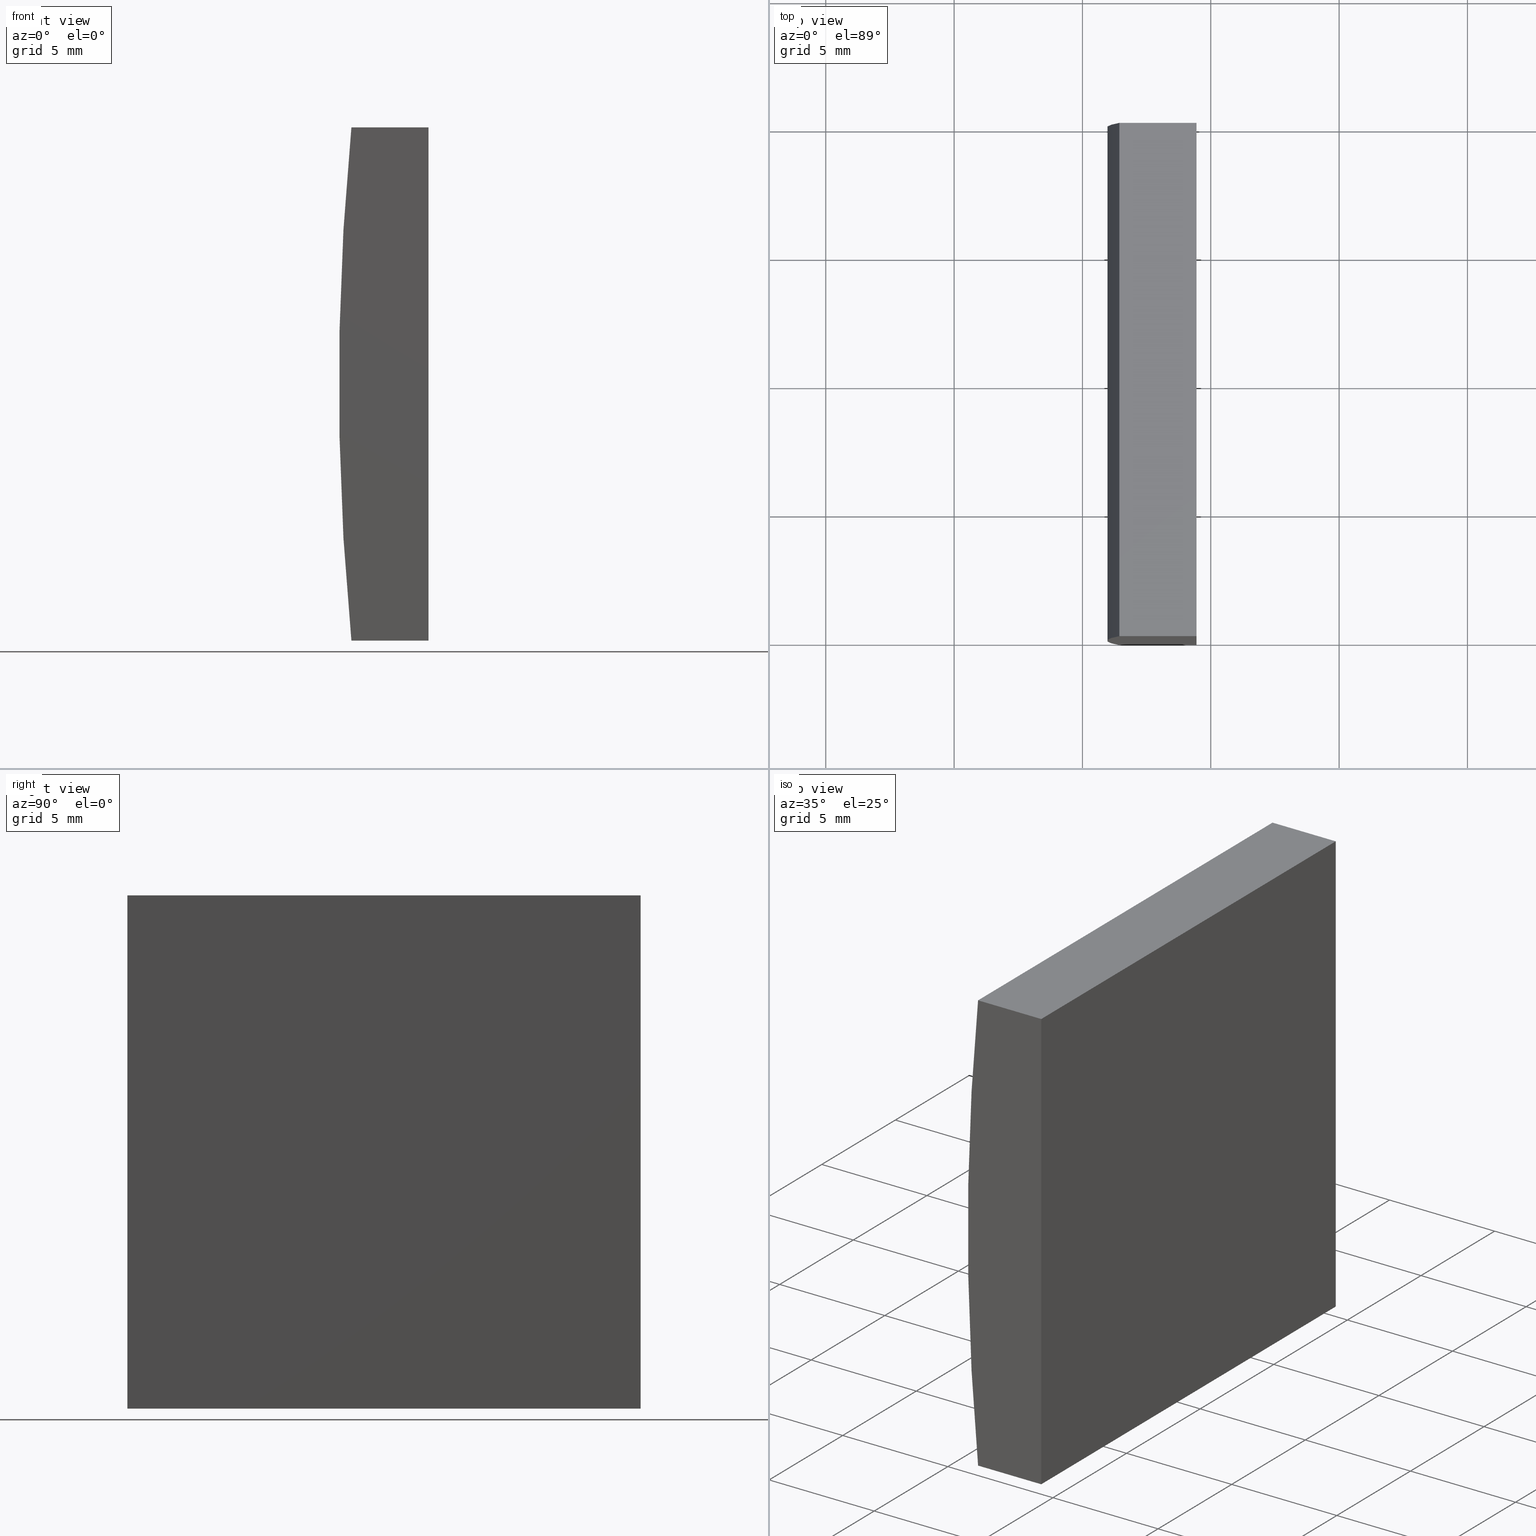
[diagram: canonical four-view strip — front | top / right | iso, engineering-drawing reading convention]
A machine part, canonical four-view strip (front | top / right | iso — engineering-drawing reading convention). The complete STEP part file that produces these views, byte-faithful:
ISO-10303-21;
HEADER;
FILE_DESCRIPTION (( 'STEP AP214' ),
    '1' );
FILE_NAME ('155033.STEP',
    '2019-06-17T06:59:19',
    ( 'user' ),
    ( '΢���й�' ),
    'SwSTEP 2.0',
    'SolidWorks 2016',
    '' );
FILE_SCHEMA (( 'AUTOMOTIVE_DESIGN' ));
ENDSEC;

DATA;
#1 = VECTOR ( 'NONE', #173, 1000.000000000000000 ) ;
#2 = STYLED_ITEM ( 'NONE', ( #88 ), #162 ) ;
#3 = ORIENTED_EDGE ( 'NONE', *, *, #18, .T. ) ;
#4 = FACE_OUTER_BOUND ( 'NONE', #10, .T. ) ;
#5 = CARTESIAN_POINT ( 'NONE',  ( -95.55479566514874500, 0.0000000000000000000, -9.999999999999985800 ) ) ;
#6 = PLANE ( 'NONE',  #77 ) ;
#7 = CARTESIAN_POINT ( 'NONE',  ( -98.56010064939295000, 20.00000000000000000, -10.00000000000000000 ) ) ;
#8 = EDGE_LOOP ( 'NONE', ( #53, #178, #52, #167 ) ) ;
#9 = AXIS2_PLACEMENT_3D ( 'NONE', #132, #143, #194 ) ;
#10 = EDGE_LOOP ( 'NONE', ( #91, #63, #113, #126 ) ) ;
#11 = SURFACE_STYLE_FILL_AREA ( #19 ) ;
#12 = CARTESIAN_POINT ( 'NONE',  ( -98.56010064939296500, 0.0000000000000000000, 10.00000000000000000 ) ) ;
#13 =( LENGTH_UNIT ( ) NAMED_UNIT ( * ) SI_UNIT ( .MILLI., .METRE. ) );
#14 = LINE ( 'NONE', #17, #30 ) ;
#15 = COLOUR_RGB ( '',1.000000000000000000, 1.000000000000000000, 1.000000000000000000 ) ;
#16 = VERTEX_POINT ( 'NONE', #185 ) ;
#17 = CARTESIAN_POINT ( 'NONE',  ( -98.56010064939295000, 0.0000000000000000000, -10.00000000000000000 ) ) ;
#18 = EDGE_CURVE ( 'NONE', #176, #123, #22, .T. ) ;
#19 = FILL_AREA_STYLE ('',( #148 ) ) ;
#20 = DIRECTION ( 'NONE',  ( 1.000000000000000000, 0.0000000000000000000, 4.617763548315712200E-015 ) ) ;
#21 = CARTESIAN_POINT ( 'NONE',  ( 4.355204334851265500, 20.00000000000000000, 4.286263797015675000E-017 ) ) ;
#22 = LINE ( 'NONE', #12, #138 ) ;
#23 = CARTESIAN_POINT ( 'NONE',  ( -98.56010064939296500, 20.00000000000000000, 10.00000000000000000 ) ) ;
#24 =( GEOMETRIC_REPRESENTATION_CONTEXT ( 3 ) GLOBAL_UNCERTAINTY_ASSIGNED_CONTEXT ( ( #26 ) ) GLOBAL_UNIT_ASSIGNED_CONTEXT ( ( #13, #198, #43 ) ) REPRESENTATION_CONTEXT ( 'NONE', 'WORKASPACE' ) );
#25 = DIRECTION ( 'NONE',  ( 0.0000000000000000000, -0.0000000000000000000, 1.000000000000000000 ) ) ;
#26 = UNCERTAINTY_MEASURE_WITH_UNIT (LENGTH_MEASURE( 1.000000000000000100E-005 ), #13, 'distance_accuracy_value', 'NONE');
#27 = FILL_AREA_STYLE ('',( #94 ) ) ;
#28 = DIRECTION ( 'NONE',  ( 0.0000000000000000000, 1.000000000000000000, 0.0000000000000000000 ) ) ;
#29 = DIRECTION ( 'NONE',  ( 0.0000000000000000000, -0.0000000000000000000, 1.000000000000000000 ) ) ;
#30 = VECTOR ( 'NONE', #133, 1000.000000000000000 ) ;
#31 = STYLED_ITEM ( 'NONE', ( #157 ), #38 ) ;
#32 = AXIS2_PLACEMENT_3D ( 'NONE', #21, #105, #29 ) ;
#33 = AXIS2_PLACEMENT_3D ( 'NONE', #37, #172, #25 ) ;
#34 = ORIENTED_EDGE ( 'NONE', *, *, #101, .F. ) ;
#35 = DIRECTION ( 'NONE',  ( -1.000000000000000000, 0.0000000000000000000, 0.0000000000000000000 ) ) ;
#36 = CARTESIAN_POINT ( 'NONE',  ( -95.55479566514874500, 20.00000000000000000, -9.999999999999985800 ) ) ;
#37 = CARTESIAN_POINT ( 'NONE',  ( 4.355204334851265500, 0.0000000000000000000, 4.286263797015675000E-017 ) ) ;
#38 = MANIFOLD_SOLID_BREP ( '͹̨-����1', #48 ) ;
#39 = MECHANICAL_DESIGN_GEOMETRIC_PRESENTATION_REPRESENTATION (  '', ( #2 ), #76 ) ;
#40 = CARTESIAN_POINT ( 'NONE',  ( -98.56010064939295000, 20.00000000000000000, -10.00000000000000000 ) ) ;
#41 = CARTESIAN_POINT ( 'NONE',  ( -98.56010064939296500, 0.0000000000000000000, 10.00000000000000000 ) ) ;
#42 = CARTESIAN_POINT ( 'NONE',  ( -98.56010064939295000, 20.00000000000000000, -10.00000000000000000 ) ) ;
#43 =( NAMED_UNIT ( * ) SI_UNIT ( $, .STERADIAN. ) SOLID_ANGLE_UNIT ( ) );
#44 = ADVANCED_FACE ( 'NONE', ( #139 ), #80, .T. ) ;
#45 = EDGE_CURVE ( 'NONE', #16, #123, #100, .T. ) ;
#46 = EDGE_CURVE ( 'NONE', #16, #109, #112, .T. ) ;
#47 = EDGE_CURVE ( 'NONE', #99, #176, #82, .T. ) ;
#48 = CLOSED_SHELL ( 'NONE', ( #44, #201, #83, #92, #156, #55 ) ) ;
#49 = LINE ( 'NONE', #180, #1 ) ;
#50 = PLANE ( 'NONE',  #33 ) ;
#51 = SURFACE_SIDE_STYLE ('',( #11 ) ) ;
#52 = ORIENTED_EDGE ( 'NONE', *, *, #164, .F. ) ;
#53 = ORIENTED_EDGE ( 'NONE', *, *, #47, .F. ) ;
#54 =( NAMED_UNIT ( * ) SI_UNIT ( $, .STERADIAN. ) SOLID_ANGLE_UNIT ( ) );
#55 = ADVANCED_FACE ( 'NONE', ( #71 ), #50, .F. ) ;
#56 = PRODUCT_DEFINITION ( 'δ֪', '', #75, #189 ) ;
#57 = EDGE_LOOP ( 'NONE', ( #111, #108, #104, #153 ) ) ;
#58 = AXIS2_PLACEMENT_3D ( 'NONE', #87, #28, #166 ) ;
#59 = SHAPE_DEFINITION_REPRESENTATION ( #165, #162 ) ;
#60 = CARTESIAN_POINT ( 'NONE',  ( -95.55479566514874500, 20.00000000000000000, -9.999999999999985800 ) ) ;
#61 = APPLICATION_CONTEXT ( 'automotive_design' ) ;
#62 = FACE_OUTER_BOUND ( 'NONE', #125, .T. ) ;
#63 = ORIENTED_EDGE ( 'NONE', *, *, #199, .F. ) ;
#64 = DIRECTION ( 'NONE',  ( -4.617763548315712200E-015, 0.0000000000000000000, 1.000000000000000000 ) ) ;
#65 = EDGE_CURVE ( 'NONE', #127, #99, #14, .T. ) ;
#66 =( NAMED_UNIT ( * ) PLANE_ANGLE_UNIT ( ) SI_UNIT ( $, .RADIAN. ) );
#67 = LINE ( 'NONE', #169, #97 ) ;
#68 = PRODUCT ( '155033', '155033', '', ( #137 ) ) ;
#69 =( LENGTH_UNIT ( ) NAMED_UNIT ( * ) SI_UNIT ( .MILLI., .METRE. ) );
#70 = VECTOR ( 'NONE', #155, 1000.000000000000000 ) ;
#71 = FACE_OUTER_BOUND ( 'NONE', #8, .T. ) ;
#72 = PRODUCT_RELATED_PRODUCT_CATEGORY ( 'part', '', ( #68 ) ) ;
#73 = ORIENTED_EDGE ( 'NONE', *, *, #45, .F. ) ;
#74 = DIRECTION ( 'NONE',  ( 1.000000000000000000, 0.0000000000000000000, 0.0000000000000000000 ) ) ;
#75 = PRODUCT_DEFINITION_FORMATION_WITH_SPECIFIED_SOURCE ( '�κ�', '', #68, .NOT_KNOWN. ) ;
#76 =( GEOMETRIC_REPRESENTATION_CONTEXT ( 3 ) GLOBAL_UNCERTAINTY_ASSIGNED_CONTEXT ( ( #118 ) ) GLOBAL_UNIT_ASSIGNED_CONTEXT ( ( #69, #66, #54 ) ) REPRESENTATION_CONTEXT ( 'NONE', 'WORKASPACE' ) );
#77 = AXIS2_PLACEMENT_3D ( 'NONE', #42, #64, #20 ) ;
#78 = EDGE_LOOP ( 'NONE', ( #191, #103, #117, #129 ) ) ;
#79 = UNCERTAINTY_MEASURE_WITH_UNIT (LENGTH_MEASURE( 1.000000000000000100E-005 ), #182, 'distance_accuracy_value', 'NONE');
#80 = CYLINDRICAL_SURFACE ( 'NONE', #151, 103.4000000000000200 ) ;
#81 = CARTESIAN_POINT ( 'NONE',  ( -98.56010064939296500, 20.00000000000000000, 10.00000000000000000 ) ) ;
#82 = CIRCLE ( 'NONE', #58, 103.4000000000000200 ) ;
#83 = ADVANCED_FACE ( 'NONE', ( #4 ), #168, .F. ) ;
#84 = APPLICATION_CONTEXT ( 'automotive_design' ) ;
#85 = CARTESIAN_POINT ( 'NONE',  ( -95.55479566514874500, 20.00000000000000000, -9.999999999999985800 ) ) ;
#86 = LINE ( 'NONE', #5, #146 ) ;
#87 = CARTESIAN_POINT ( 'NONE',  ( 4.355204334851265500, 0.0000000000000000000, 4.286263797015675000E-017 ) ) ;
#88 = PRESENTATION_STYLE_ASSIGNMENT (( #171 ) ) ;
#89 = PRESENTATION_LAYER_ASSIGNMENT (  '', '', ( #2 ) ) ;
#90 = DIRECTION ( 'NONE',  ( 0.0000000000000000000, 0.0000000000000000000, 1.000000000000000000 ) ) ;
#91 = ORIENTED_EDGE ( 'NONE', *, *, #164, .T. ) ;
#92 = ADVANCED_FACE ( 'NONE', ( #98 ), #6, .F. ) ;
#93 = EDGE_LOOP ( 'NONE', ( #145, #34, #179, #120 ) ) ;
#94 = FILL_AREA_STYLE_COLOUR ( '', #107 ) ;
#95 = CARTESIAN_POINT ( 'NONE',  ( -98.56010064939295000, 0.0000000000000000000, -10.00000000000000000 ) ) ;
#96 = SURFACE_STYLE_FILL_AREA ( #27 ) ;
#97 = VECTOR ( 'NONE', #154, 1000.000000000000000 ) ;
#98 = FACE_OUTER_BOUND ( 'NONE', #93, .T. ) ;
#99 = VERTEX_POINT ( 'NONE', #95 ) ;
#100 = LINE ( 'NONE', #158, #70 ) ;
#101 = EDGE_CURVE ( 'NONE', #149, #99, #122, .T. ) ;
#102 = PLANE ( 'NONE',  #32 ) ;
#103 = ORIENTED_EDGE ( 'NONE', *, *, #202, .T. ) ;
#104 = ORIENTED_EDGE ( 'NONE', *, *, #142, .F. ) ;
#105 = DIRECTION ( 'NONE',  ( 0.0000000000000000000, 1.000000000000000000, 0.0000000000000000000 ) ) ;
#106 = CARTESIAN_POINT ( 'NONE',  ( 4.355204334851265500, 20.00000000000000000, 4.286263797015675000E-017 ) ) ;
#107 = COLOUR_RGB ( '',1.000000000000000000, 1.000000000000000000, 1.000000000000000000 ) ;
#108 = ORIENTED_EDGE ( 'NONE', *, *, #175, .F. ) ;
#109 = VERTEX_POINT ( 'NONE', #85 ) ;
#110 = MECHANICAL_DESIGN_GEOMETRIC_PRESENTATION_REPRESENTATION (  '', ( #31 ), #24 ) ;
#111 = ORIENTED_EDGE ( 'NONE', *, *, #47, .T. ) ;
#112 = LINE ( 'NONE', #60, #196 ) ;
#113 = ORIENTED_EDGE ( 'NONE', *, *, #46, .F. ) ;
#114 = PRESENTATION_LAYER_ASSIGNMENT (  '', '', ( #31 ) ) ;
#115 = PLANE ( 'NONE',  #128 ) ;
#116 = CARTESIAN_POINT ( 'NONE',  ( -95.55479566514874500, 0.0000000000000000000, 10.00000000000000000 ) ) ;
#117 = ORIENTED_EDGE ( 'NONE', *, *, #46, .T. ) ;
#118 = UNCERTAINTY_MEASURE_WITH_UNIT (LENGTH_MEASURE( 1.000000000000000100E-005 ), #69, 'distance_accuracy_value', 'NONE');
#119 = CARTESIAN_POINT ( 'NONE',  ( -98.56010064939296500, 20.00000000000000000, 10.00000000000000000 ) ) ;
#120 = ORIENTED_EDGE ( 'NONE', *, *, #199, .T. ) ;
#121 = DIRECTION ( 'NONE',  ( -0.0000000000000000000, -0.0000000000000000000, -1.000000000000000000 ) ) ;
#122 = LINE ( 'NONE', #141, #188 ) ;
#123 = VERTEX_POINT ( 'NONE', #116 ) ;
#124 = DIRECTION ( 'NONE',  ( -0.0000000000000000000, -1.000000000000000000, -0.0000000000000000000 ) ) ;
#125 = EDGE_LOOP ( 'NONE', ( #3, #73, #203, #140 ) ) ;
#126 = ORIENTED_EDGE ( 'NONE', *, *, #45, .T. ) ;
#127 = VERTEX_POINT ( 'NONE', #136 ) ;
#128 = AXIS2_PLACEMENT_3D ( 'NONE', #81, #170, #177 ) ;
#129 = ORIENTED_EDGE ( 'NONE', *, *, #190, .T. ) ;
#130 =( GEOMETRIC_REPRESENTATION_CONTEXT ( 3 ) GLOBAL_UNCERTAINTY_ASSIGNED_CONTEXT ( ( #79 ) ) GLOBAL_UNIT_ASSIGNED_CONTEXT ( ( #182, #152, #187 ) ) REPRESENTATION_CONTEXT ( 'NONE', 'WORKASPACE' ) );
#131 = DIRECTION ( 'NONE',  ( 0.0000000000000000000, 0.0000000000000000000, -1.000000000000000000 ) ) ;
#132 = CARTESIAN_POINT ( 'NONE',  ( 0.0000000000000000000, 0.0000000000000000000, 0.0000000000000000000 ) ) ;
#133 = DIRECTION ( 'NONE',  ( -1.000000000000000000, -0.0000000000000000000, -4.617763548315712200E-015 ) ) ;
#134 = DIRECTION ( 'NONE',  ( -0.0000000000000000000, -0.0000000000000000000, -1.000000000000000000 ) ) ;
#135 = LINE ( 'NONE', #40, #195 ) ;
#136 = CARTESIAN_POINT ( 'NONE',  ( -95.55479566514874500, 0.0000000000000000000, -9.999999999999985800 ) ) ;
#137 = PRODUCT_CONTEXT ( 'NONE', #61, 'mechanical' ) ;
#138 = VECTOR ( 'NONE', #74, 1000.000000000000000 ) ;
#139 = FACE_OUTER_BOUND ( 'NONE', #57, .T. ) ;
#140 = ORIENTED_EDGE ( 'NONE', *, *, #175, .T. ) ;
#141 = CARTESIAN_POINT ( 'NONE',  ( -98.56010064939295000, 20.00000000000000000, -10.00000000000000000 ) ) ;
#142 = EDGE_CURVE ( 'NONE', #149, #161, #183, .T. ) ;
#143 = DIRECTION ( 'NONE',  ( 0.0000000000000000000, 0.0000000000000000000, 1.000000000000000000 ) ) ;
#144 = LINE ( 'NONE', #119, #163 ) ;
#145 = ORIENTED_EDGE ( 'NONE', *, *, #65, .T. ) ;
#146 = VECTOR ( 'NONE', #121, 1000.000000000000000 ) ;
#147 = AXIS2_PLACEMENT_3D ( 'NONE', #160, #181, #90 ) ;
#148 = FILL_AREA_STYLE_COLOUR ( '', #15 ) ;
#149 = VERTEX_POINT ( 'NONE', #7 ) ;
#150 = DIRECTION ( 'NONE',  ( -0.0000000000000000000, -1.000000000000000000, -0.0000000000000000000 ) ) ;
#151 = AXIS2_PLACEMENT_3D ( 'NONE', #106, #197, #131 ) ;
#152 =( NAMED_UNIT ( * ) PLANE_ANGLE_UNIT ( ) SI_UNIT ( $, .RADIAN. ) );
#153 = ORIENTED_EDGE ( 'NONE', *, *, #101, .T. ) ;
#154 = DIRECTION ( 'NONE',  ( 1.000000000000000000, 0.0000000000000000000, 0.0000000000000000000 ) ) ;
#155 = DIRECTION ( 'NONE',  ( -0.0000000000000000000, -1.000000000000000000, -0.0000000000000000000 ) ) ;
#156 = ADVANCED_FACE ( 'NONE', ( #186 ), #102, .T. ) ;
#157 = PRESENTATION_STYLE_ASSIGNMENT (( #159 ) ) ;
#158 = CARTESIAN_POINT ( 'NONE',  ( -95.55479566514874500, 20.00000000000000000, 10.00000000000000000 ) ) ;
#159 = SURFACE_STYLE_USAGE ( .BOTH. , #51 ) ;
#160 = CARTESIAN_POINT ( 'NONE',  ( 4.355204334851265500, 20.00000000000000000, 4.286263797015675000E-017 ) ) ;
#161 = VERTEX_POINT ( 'NONE', #23 ) ;
#162 = ADVANCED_BREP_SHAPE_REPRESENTATION ( '155033', ( #38, #9 ), #130 ) ;
#163 = VECTOR ( 'NONE', #124, 1000.000000000000000 ) ;
#164 = EDGE_CURVE ( 'NONE', #123, #127, #86, .T. ) ;
#165 = PRODUCT_DEFINITION_SHAPE ( 'NONE', 'NONE',  #56 ) ;
#166 = DIRECTION ( 'NONE',  ( 0.0000000000000000000, 0.0000000000000000000, 1.000000000000000000 ) ) ;
#167 = ORIENTED_EDGE ( 'NONE', *, *, #18, .F. ) ;
#168 = PLANE ( 'NONE',  #204 ) ;
#169 = CARTESIAN_POINT ( 'NONE',  ( -98.56010064939296500, 20.00000000000000000, 10.00000000000000000 ) ) ;
#170 = DIRECTION ( 'NONE',  ( 0.0000000000000000000, 0.0000000000000000000, -1.000000000000000000 ) ) ;
#171 = SURFACE_STYLE_USAGE ( .BOTH. , #174 ) ;
#172 = DIRECTION ( 'NONE',  ( 0.0000000000000000000, 1.000000000000000000, 0.0000000000000000000 ) ) ;
#173 = DIRECTION ( 'NONE',  ( -0.0000000000000000000, -1.000000000000000000, -0.0000000000000000000 ) ) ;
#174 = SURFACE_SIDE_STYLE ('',( #96 ) ) ;
#175 = EDGE_CURVE ( 'NONE', #161, #176, #144, .T. ) ;
#176 = VERTEX_POINT ( 'NONE', #41 ) ;
#177 = DIRECTION ( 'NONE',  ( -1.000000000000000000, 0.0000000000000000000, -0.0000000000000000000 ) ) ;
#178 = ORIENTED_EDGE ( 'NONE', *, *, #65, .F. ) ;
#179 = ORIENTED_EDGE ( 'NONE', *, *, #190, .F. ) ;
#180 = CARTESIAN_POINT ( 'NONE',  ( -95.55479566514874500, 20.00000000000000000, -9.999999999999985800 ) ) ;
#181 = DIRECTION ( 'NONE',  ( 0.0000000000000000000, 1.000000000000000000, 0.0000000000000000000 ) ) ;
#182 =( LENGTH_UNIT ( ) NAMED_UNIT ( * ) SI_UNIT ( .MILLI., .METRE. ) );
#183 = CIRCLE ( 'NONE', #147, 103.4000000000000200 ) ;
#184 = APPLICATION_PROTOCOL_DEFINITION ( 'draft international standard', 'automotive_design', 1998, #61 ) ;
#185 = CARTESIAN_POINT ( 'NONE',  ( -95.55479566514874500, 20.00000000000000000, 10.00000000000000000 ) ) ;
#186 = FACE_OUTER_BOUND ( 'NONE', #78, .T. ) ;
#187 =( NAMED_UNIT ( * ) SI_UNIT ( $, .STERADIAN. ) SOLID_ANGLE_UNIT ( ) );
#188 = VECTOR ( 'NONE', #150, 1000.000000000000000 ) ;
#189 = PRODUCT_DEFINITION_CONTEXT ( 'detailed design', #84, 'design' ) ;
#190 = EDGE_CURVE ( 'NONE', #109, #149, #135, .T. ) ;
#191 = ORIENTED_EDGE ( 'NONE', *, *, #142, .T. ) ;
#192 = DIRECTION ( 'NONE',  ( -1.000000000000000000, -0.0000000000000000000, -4.617763548315712200E-015 ) ) ;
#193 = APPLICATION_PROTOCOL_DEFINITION ( 'draft international standard', 'automotive_design', 1998, #84 ) ;
#194 = DIRECTION ( 'NONE',  ( 1.000000000000000000, 0.0000000000000000000, 0.0000000000000000000 ) ) ;
#195 = VECTOR ( 'NONE', #192, 1000.000000000000000 ) ;
#196 = VECTOR ( 'NONE', #134, 1000.000000000000000 ) ;
#197 = DIRECTION ( 'NONE',  ( -0.0000000000000000000, -1.000000000000000000, -0.0000000000000000000 ) ) ;
#198 =( NAMED_UNIT ( * ) PLANE_ANGLE_UNIT ( ) SI_UNIT ( $, .RADIAN. ) );
#199 = EDGE_CURVE ( 'NONE', #109, #127, #49, .T. ) ;
#200 = DIRECTION ( 'NONE',  ( 0.0000000000000000000, 0.0000000000000000000, 1.000000000000000000 ) ) ;
#201 = ADVANCED_FACE ( 'NONE', ( #62 ), #115, .F. ) ;
#202 = EDGE_CURVE ( 'NONE', #161, #16, #67, .T. ) ;
#203 = ORIENTED_EDGE ( 'NONE', *, *, #202, .F. ) ;
#204 = AXIS2_PLACEMENT_3D ( 'NONE', #36, #35, #200 ) ;
ENDSEC;
END-ISO-10303-21;
